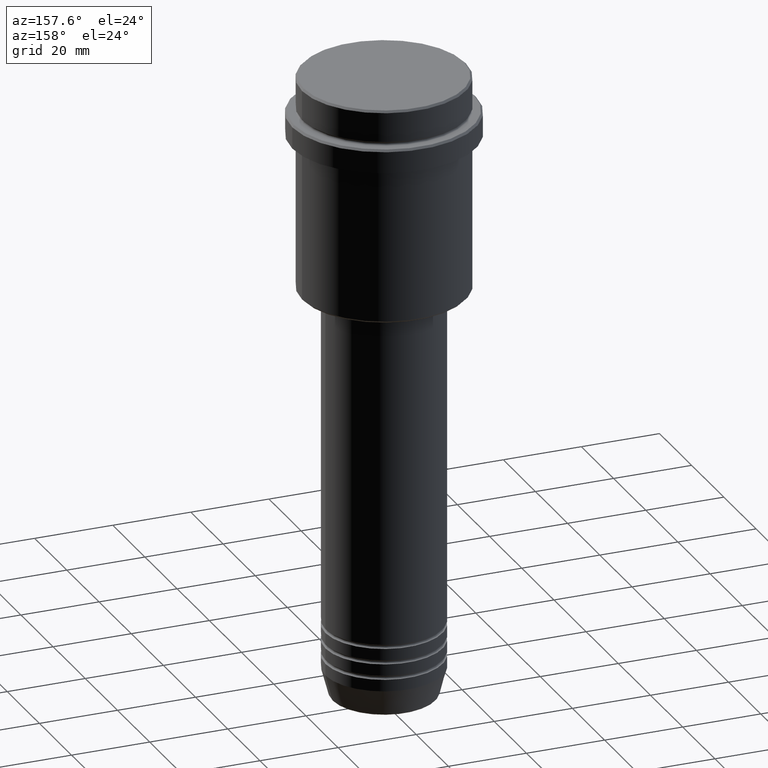
[diagram: clean part render]
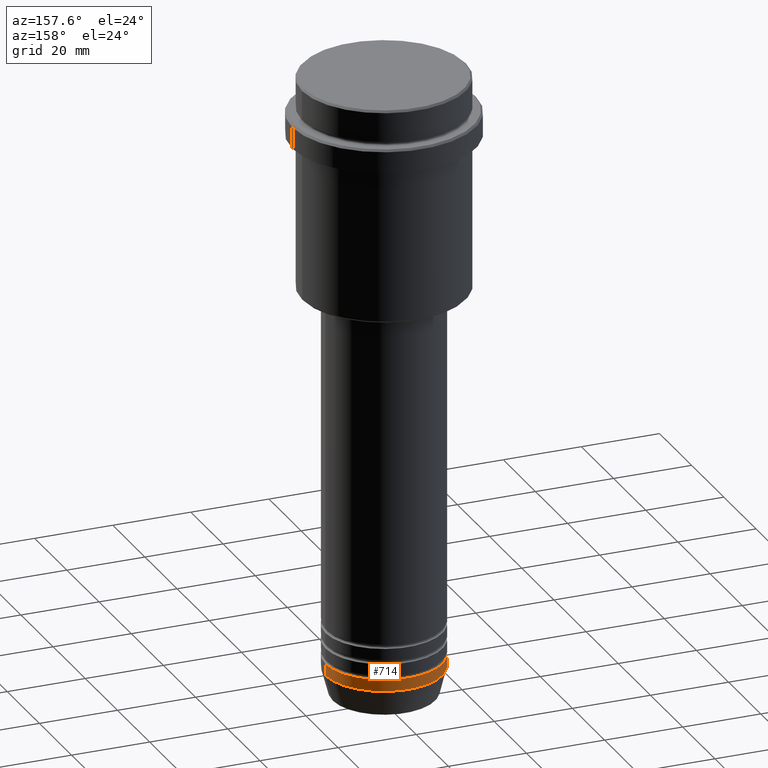
[diagram: same view with one face highlighted and labeled with its STEP entity id]
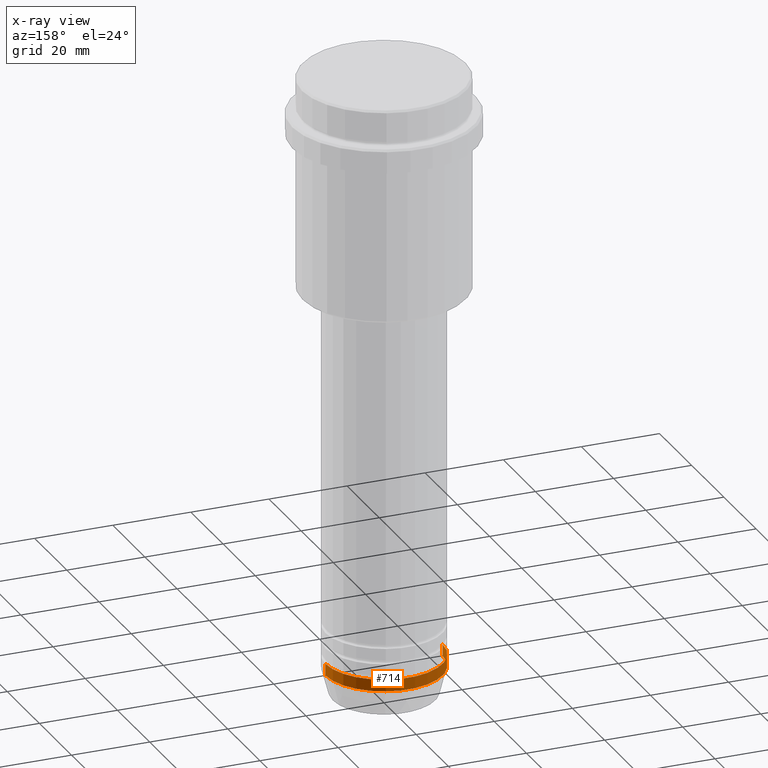
[diagram: x-ray of the same camera — body ghosted, the highlighted face saturated]
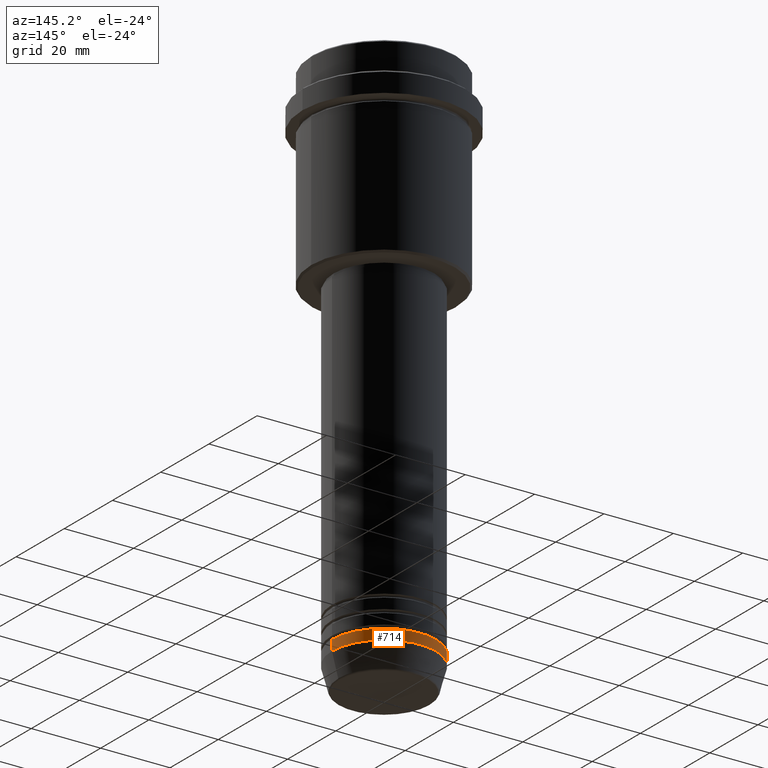
[diagram: same view with one face highlighted and labeled with its STEP entity id]
A machine part, auxiliary view. The second image highlights one B-rep face of the part: STEP entity #714.
The next image is the same camera in x-ray: the body ghosted, the highlighted face saturated — about 0% of this face is hidden behind the body in this view.
A second angle (auxiliary view) of the same face is appended — the face is thin or edge-on in the first view.
In plain terms, the highlighted cylindrical surface (partial cylindrical patch) has radius 15 mm, axis along (-0, -0, 1).
Its self-contained STEP definition (entity closure, byte-faithful):
#32 = LINE ( 'NONE', #462, #1330 ) ;
#35 = VERTEX_POINT ( 'NONE', #1220 ) ;
#47 = DIRECTION ( 'NONE',  ( 1.000000000000000000, 0.000000000000000000, 0.000000000000000000 ) ) ;
#205 = CARTESIAN_POINT ( 'NONE',  ( 0.000000000000000000, 0.000000000000000000, -153.0000000000000000 ) ) ;
#251 = ORIENTED_EDGE ( 'NONE', *, *, #738, .F. ) ;
#316 = DIRECTION ( 'NONE',  ( 1.000000000000000000, 0.000000000000000000, 0.000000000000000000 ) ) ;
#338 = CIRCLE ( 'NONE', #363, 15.00000000000000000 ) ;
#355 = CARTESIAN_POINT ( 'NONE',  ( -15.00000000000000000, 1.836970198721029589E-15, -150.0000000000000000 ) ) ;
#363 = AXIS2_PLACEMENT_3D ( 'NONE', #419, #771, #542 ) ;
#366 = AXIS2_PLACEMENT_3D ( 'NONE', #205, #1296, #316 ) ;
#373 = CYLINDRICAL_SURFACE ( 'NONE', #960, 15.00000000000000000 ) ;
#419 = CARTESIAN_POINT ( 'NONE',  ( 0.000000000000000000, 0.000000000000000000, -150.0000000000000000 ) ) ;
#440 = VERTEX_POINT ( 'NONE', #1071 ) ;
#454 = EDGE_CURVE ( 'NONE', #35, #990, #338, .T. ) ;
#462 = CARTESIAN_POINT ( 'NONE',  ( 15.00000000000000000, 0.000000000000000000, 0.000000000000000000 ) ) ;
#509 = VERTEX_POINT ( 'NONE', #758 ) ;
#525 = LINE ( 'NONE', #969, #940 ) ;
#542 = DIRECTION ( 'NONE',  ( 1.000000000000000000, 0.000000000000000000, 0.000000000000000000 ) ) ;
#551 = ORIENTED_EDGE ( 'NONE', *, *, #454, .F. ) ;
#572 = EDGE_LOOP ( 'NONE', ( #999, #666, #551, #251 ) ) ;
#576 = DIRECTION ( 'NONE',  ( -0.000000000000000000, -0.000000000000000000, 1.000000000000000000 ) ) ;
#582 = EDGE_CURVE ( 'NONE', #440, #509, #1009, .T. ) ;
#590 = CARTESIAN_POINT ( 'NONE',  ( 0.000000000000000000, 0.000000000000000000, 0.000000000000000000 ) ) ;
#666 = ORIENTED_EDGE ( 'NONE', *, *, #878, .T. ) ;
#714 = ADVANCED_FACE ( 'NONE', ( #1226 ), #373, .T. ) ;
#738 = EDGE_CURVE ( 'NONE', #440, #35, #32, .T. ) ;
#758 = CARTESIAN_POINT ( 'NONE',  ( -15.00000000000000000, 1.836970198721029589E-15, -153.0000000000000000 ) ) ;
#771 = DIRECTION ( 'NONE',  ( -0.000000000000000000, -0.000000000000000000, 1.000000000000000000 ) ) ;
#878 = EDGE_CURVE ( 'NONE', #509, #990, #525, .T. ) ;
#924 = DIRECTION ( 'NONE',  ( -0.000000000000000000, -0.000000000000000000, 1.000000000000000000 ) ) ;
#940 = VECTOR ( 'NONE', #1401, 1000.000000000000000 ) ;
#960 = AXIS2_PLACEMENT_3D ( 'NONE', #590, #576, #47 ) ;
#969 = CARTESIAN_POINT ( 'NONE',  ( -15.00000000000000000, 1.836970198721029589E-15, 0.000000000000000000 ) ) ;
#990 = VERTEX_POINT ( 'NONE', #355 ) ;
#999 = ORIENTED_EDGE ( 'NONE', *, *, #582, .T. ) ;
#1009 = CIRCLE ( 'NONE', #366, 15.00000000000000000 ) ;
#1071 = CARTESIAN_POINT ( 'NONE',  ( 15.00000000000000000, 0.000000000000000000, -153.0000000000000000 ) ) ;
#1220 = CARTESIAN_POINT ( 'NONE',  ( 15.00000000000000000, 0.000000000000000000, -150.0000000000000000 ) ) ;
#1226 = FACE_OUTER_BOUND ( 'NONE', #572, .T. ) ;
#1296 = DIRECTION ( 'NONE',  ( -0.000000000000000000, -0.000000000000000000, 1.000000000000000000 ) ) ;
#1330 = VECTOR ( 'NONE', #924, 1000.000000000000000 ) ;
#1401 = DIRECTION ( 'NONE',  ( -0.000000000000000000, -0.000000000000000000, 1.000000000000000000 ) ) ;